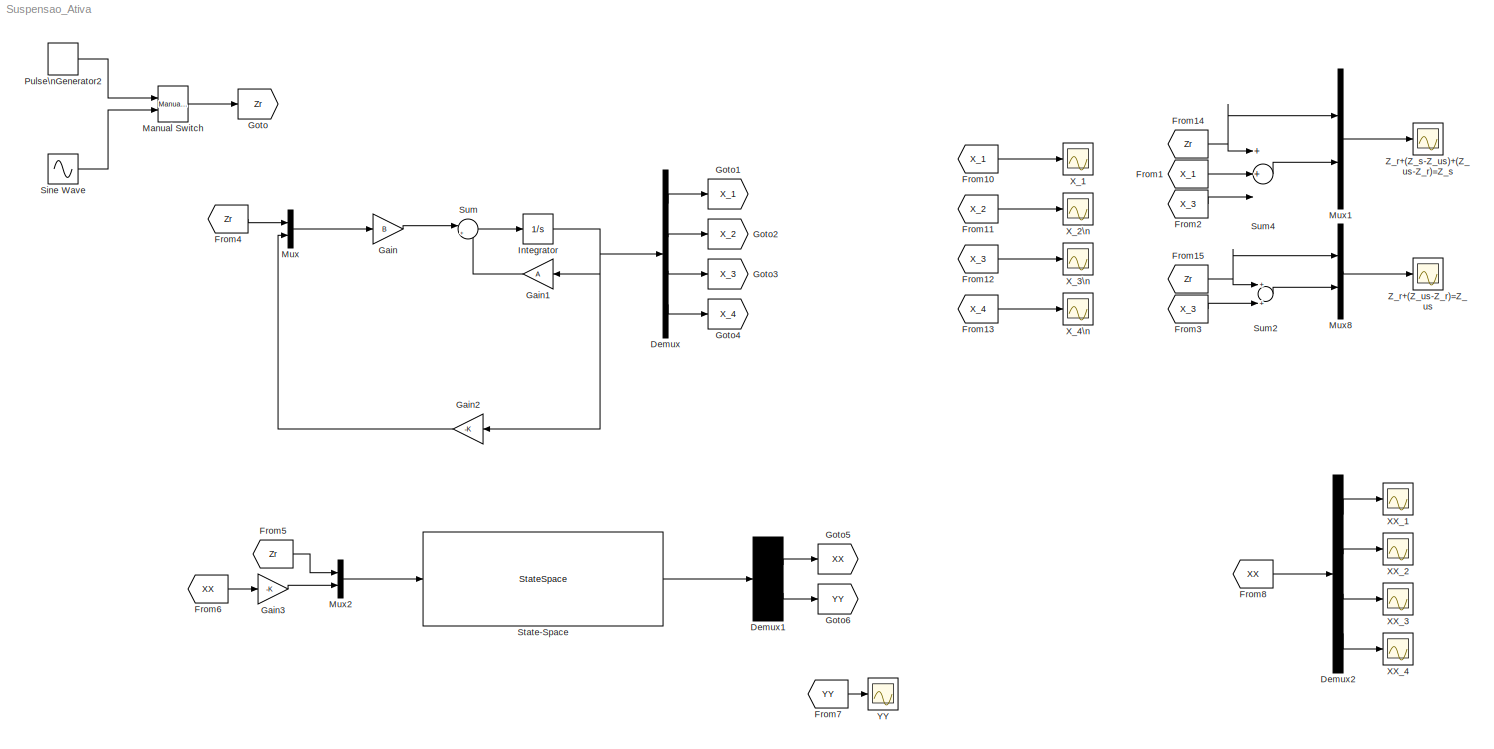
MODEL Suspensao_Ativa
KIND model
BLOCK [Demux] Demux
  DisplayOption = bar
  Ports = [1, 4]
  SID = 6
BLOCK [Demux] Demux1
  DisplayOption = bar
  Outputs = [4;2]
  Ports = [1, 2]
  SID = 40
BLOCK [Demux] Demux2
  DisplayOption = bar
  Ports = [1, 4]
  SID = 46
BLOCK [From] From1
  GotoTag = X_1
  SID = 32
BLOCK [From] From10
  GotoTag = X_1
  SID = 28
BLOCK [From] From11
  GotoTag = X_2
  SID = 29
BLOCK [From] From12
  GotoTag = X_3
  SID = 30
BLOCK [From] From13
  GotoTag = X_4
  SID = 31
BLOCK [From] From14
  GotoTag = Zr
  SID = 12
BLOCK [From] From15
  GotoTag = Zr
  SID = 13
BLOCK [From] From2
  GotoTag = X_3
  SID = 33
BLOCK [From] From3
  GotoTag = X_3
  SID = 34
BLOCK [From] From4
  GotoTag = Zr
  SID = 36
BLOCK [From] From5
  GotoTag = Zr
  SID = 37
BLOCK [From] From6
  GotoTag = XX
  SID = 43
BLOCK [From] From7
  GotoTag = YY
  SID = 45
BLOCK [From] From8
  GotoTag = XX
  SID = 51
BLOCK [Gain] Gain
  Gain = B
  Multiplication = Matrix(K*u)
  OutDataTypeStr = Inherit: Inherit via internal rule
  ParamDataTypeStr = Inherit: Inherit via internal rule
  SID = 2
  SaturateOnIntegerOverflow = off
BLOCK [Gain] Gain1
  Gain = A
  Multiplication = Matrix(K*u)
  OutDataTypeStr = Inherit: Inherit via internal rule
  ParamDataTypeStr = Inherit: Inherit via internal rule
  SID = 3
  SaturateOnIntegerOverflow = off
BLOCK [Gain] Gain2
  Gain = -K
  Multiplication = Matrix(K*u) (u vector)
  OutDataTypeStr = Inherit: Inherit via internal rule
  ParamDataTypeStr = Inherit: Inherit via internal rule
  SID = 7
  SaturateOnIntegerOverflow = off
BLOCK [Gain] Gain3
  Gain = -K
  Multiplication = Matrix(K*u) (u vector)
  OutDataTypeStr = Inherit: Inherit via internal rule
  ParamDataTypeStr = Inherit: Inherit via internal rule
  SID = 39
  SaturateOnIntegerOverflow = off
BLOCK [Goto] Goto
  GotoTag = Zr
  SID = 11
  TagVisibility = local
BLOCK [Goto] Goto1
  GotoTag = X_1
  SID = 14
  TagVisibility = local
BLOCK [Goto] Goto2
  GotoTag = X_2
  SID = 15
  TagVisibility = local
BLOCK [Goto] Goto3
  GotoTag = X_3
  SID = 16
  TagVisibility = local
BLOCK [Goto] Goto4
  GotoTag = X_4
  SID = 17
  TagVisibility = local
BLOCK [Goto] Goto5
  GotoTag = XX
  SID = 41
  TagVisibility = local
BLOCK [Goto] Goto6
  GotoTag = YY
  SID = 42
  TagVisibility = local
BLOCK [Integrator] Integrator
  Ports = [1, 1]
  SID = 1
BLOCK [Reference] Manual Switch  REF=simulink/Signal\nRouting/Manual Switch
  FunctionWithSeparateData = off
  GeneratePreprocessorConditionals = off
  Ports = [2, 1]
  RTWMemSecDataConstants = Inherit from model
  RTWMemSecDataInternal = Inherit from model
  RTWMemSecDataParameters = Inherit from model
  RTWMemSecFuncExecute = Inherit from model
  RTWMemSecFuncInitTerm = Inherit from model
  SID = 56
  ShowPortLabels = FromPortIcon
  SourceBlock = simulink/Signal\nRouting/Manual Switch
  SourceType = Manual Switch
  SystemSampleTime = -1
  action = 0
  sw = 1
  varsize = off
BLOCK [Mux] Mux
  DisplayOption = bar
  Inputs = 2
  Ports = [2, 1]
  SID = 4
BLOCK [Mux] Mux1
  DisplayOption = bar
  Inputs = 2
  Ports = [2, 1]
  SID = 18
BLOCK [Mux] Mux2
  DisplayOption = bar
  Inputs = 2
  Ports = [2, 1]
  SID = 38
BLOCK [Mux] Mux8
  DisplayOption = bar
  Inputs = 2
  Ports = [2, 1]
  SID = 19
BLOCK [DiscretePulseGenerator] Pulse\nGenerator2
  Amplitude = 0.02
  Period = 3
  PhaseDelay = .1
  Ports = [0, 1]
  PulseType = Time based
  PulseWidth = 50
  SID = 9
BLOCK [Sin] Sine Wave
  Amplitude = 0.02
  Frequency = pi/0.3
  Ports = [0, 1]
  SID = 10
  SampleTime = 0
BLOCK [StateSpace] State-Space
  A = A
  B = B
  C = C
  D = D
  SID = 35
BLOCK [Sum] Sum
  IconShape = round
  InputSameDT = off
  Inputs = |++
  OutDataTypeStr = Inherit: Inherit via internal rule
  Ports = [2, 1]
  SID = 5
  SaturateOnIntegerOverflow = off
BLOCK [Sum] Sum2
  Inputs = 2
  Ports = [2, 1]
  SID = 20
BLOCK [Sum] Sum4
  Inputs = 3
  Ports = [3, 1]
  SID = 21
BLOCK [Scope] XX_1
  DataFormat = Array
  Floating = off
  NumInputPorts = 1
  Ports = [1]
  SID = 52
  SampleTime = 0
  SaveName = x7
  SaveToWorkspace = on
BLOCK [Scope] XX_2
  DataFormat = Array
  Floating = off
  NumInputPorts = 1
  Ports = [1]
  SID = 53
  SampleTime = 0
  SaveName = x8
  SaveToWorkspace = on
BLOCK [Scope] XX_3
  DataFormat = Array
  Floating = off
  NumInputPorts = 1
  Ports = [1]
  SID = 54
  SampleTime = 0
  SaveName = x9
  SaveToWorkspace = on
BLOCK [Scope] XX_4
  DataFormat = Array
  Floating = off
  NumInputPorts = 1
  Ports = [1]
  SID = 55
  SampleTime = 0
  SaveName = x10
  SaveToWorkspace = on
BLOCK [Scope] X_1
  DataFormat = Array
  Floating = off
  NumInputPorts = 1
  Ports = [1]
  SID = 22
  SampleTime = 0
  SaveName = x
  SaveToWorkspace = on
BLOCK [Scope] X_2\n
  DataFormat = Array
  Floating = off
  NumInputPorts = 1
  Ports = [1]
  SID = 23
  SampleTime = 0
  SaveName = x1
  SaveToWorkspace = on
BLOCK [Scope] X_3\n
  DataFormat = Array
  Floating = off
  NumInputPorts = 1
  Ports = [1]
  SID = 24
  SampleTime = 0
  SaveName = x2
  SaveToWorkspace = on
BLOCK [Scope] X_4\n
  DataFormat = Array
  Floating = off
  NumInputPorts = 1
  Ports = [1]
  SID = 25
  SampleTime = 0
  SaveName = x3
  SaveToWorkspace = on
BLOCK [Scope] YY
  DataFormat = Array
  Floating = off
  NumInputPorts = 1
  Ports = [1]
  SID = 44
  SampleTime = 0
  SaveName = x6
  SaveToWorkspace = on
BLOCK [Scope] Z_r+(Z_s-Z_us)+(Z_us-Z_r)=Z_s
  DataFormat = Array
  Floating = off
  NumInputPorts = 1
  Ports = [1]
  SID = 26
  SampleTime = 0
  SaveName = x4
  SaveToWorkspace = on
BLOCK [Scope] Z_r+(Z_us-Z_r)=Z_us
  DataFormat = Array
  Floating = off
  NumInputPorts = 1
  Ports = [1]
  SID = 27
  SampleTime = 0
  SaveName = x5
  SaveToWorkspace = on
LINE Demux1:1 -> Goto5:1
LINE Demux1:2 -> Goto6:1
LINE Demux2:1 -> XX_1:1
LINE Demux2:2 -> XX_2:1
LINE Demux2:3 -> XX_3:1
LINE Demux2:4 -> XX_4:1
LINE Demux:1 -> Goto1:1
LINE Demux:2 -> Goto2:1
LINE Demux:3 -> Goto3:1
LINE Demux:4 -> Goto4:1
LINE From10:1 -> X_1:1
LINE From11:1 -> X_2\n:1
LINE From12:1 -> X_3\n:1
LINE From13:1 -> X_4\n:1
NET From14:1 -> Mux1:1, Sum4:1
NET From15:1 -> Mux8:1, Sum2:1
LINE From1:1 -> Sum4:2
LINE From2:1 -> Sum4:3
LINE From3:1 -> Sum2:2
LINE From4:1 -> Mux:1
LINE From5:1 -> Mux2:1
LINE From6:1 -> Gain3:1
LINE From7:1 -> YY:1
LINE From8:1 -> Demux2:1
LINE Gain1:1 -> Sum:2
LINE Gain2:1 -> Mux:2
LINE Gain3:1 -> Mux2:2
LINE Gain:1 -> Sum:1
NET Integrator:1 -> Demux:1, Gain1:1, Gain2:1
LINE Manual Switch:1 -> Goto:1
LINE Mux1:1 -> Z_r+(Z_s-Z_us)+(Z_us-Z_r)=Z_s:1
LINE Mux2:1 -> State-Space:1
LINE Mux8:1 -> Z_r+(Z_us-Z_r)=Z_us:1
LINE Mux:1 -> Gain:1
LINE Pulse\nGenerator2:1 -> Manual Switch:1
LINE Sine Wave:1 -> Manual Switch:2
LINE State-Space:1 -> Demux1:1
LINE Sum2:1 -> Mux8:2
LINE Sum4:1 -> Mux1:2
LINE Sum:1 -> Integrator:1
note: NET lines group one-source signal fan-out (src -> all destinations, sorted); 1:1 wires keep LINE
